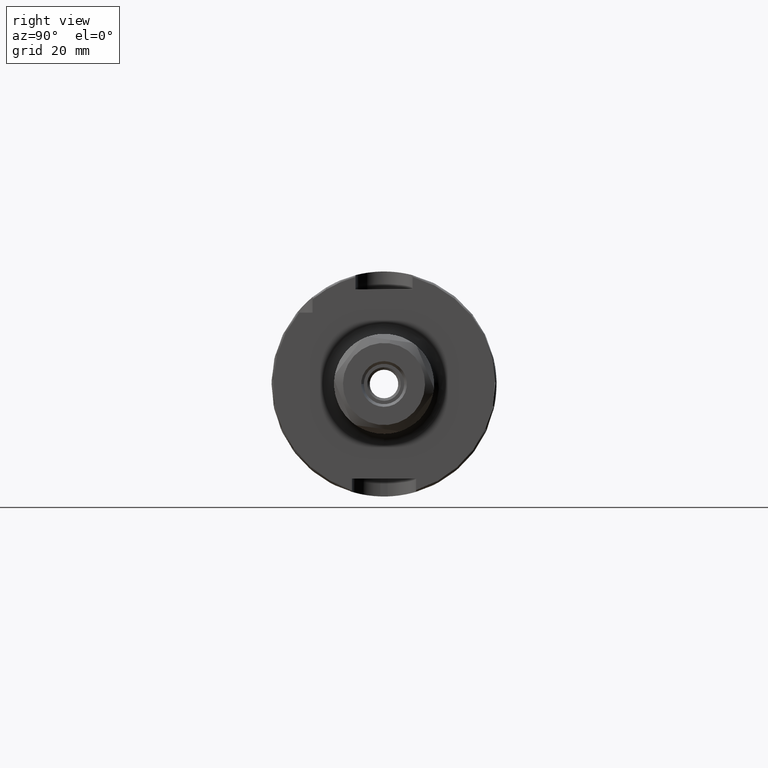
[diagram: clean part render]
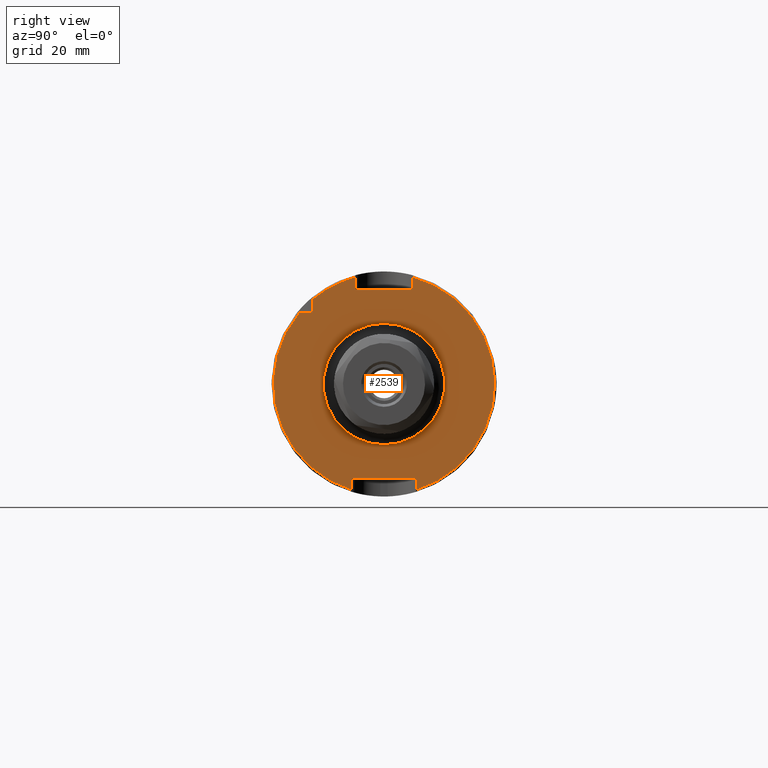
[diagram: same view with one face highlighted and labeled with its STEP entity id]
A machine part, right view. The second image highlights one B-rep face of the part: STEP entity #2539.
In plain terms, the highlighted planar face has unit normal (1, 0, 0).
Its self-contained STEP definition (entity closure, byte-faithful):
#154=FACE_BOUND('',#419,.T.);
#171=PLANE('',#2779);
#263=FACE_OUTER_BOUND('',#418,.T.);
#418=EDGE_LOOP('',(#1737,#1738,#1739,#1740,#1741,#1742,#1743,#1744,#1745,
#1746,#1747));
#419=EDGE_LOOP('',(#1748));
#581=LINE('',#3945,#727);
#582=LINE('',#3949,#728);
#583=LINE('',#3951,#729);
#584=LINE('',#3953,#730);
#585=LINE('',#3957,#731);
#586=LINE('',#3959,#732);
#587=LINE('',#3961,#733);
#588=LINE('',#3964,#734);
#727=VECTOR('',#3152,10.);
#728=VECTOR('',#3155,10.);
#729=VECTOR('',#3156,10.);
#730=VECTOR('',#3157,10.);
#731=VECTOR('',#3160,10.);
#732=VECTOR('',#3161,10.);
#733=VECTOR('',#3162,10.);
#734=VECTOR('',#3165,10.);
#887=CIRCLE('',#2778,17.);
#888=CIRCLE('',#2780,31.);
#889=CIRCLE('',#2781,31.);
#890=CIRCLE('',#2782,31.);
#1044=VERTEX_POINT('',#3939);
#1045=VERTEX_POINT('',#3943);
#1046=VERTEX_POINT('',#3944);
#1047=VERTEX_POINT('',#3946);
#1048=VERTEX_POINT('',#3948);
#1049=VERTEX_POINT('',#3950);
#1050=VERTEX_POINT('',#3952);
#1051=VERTEX_POINT('',#3954);
#1052=VERTEX_POINT('',#3956);
#1053=VERTEX_POINT('',#3958);
#1054=VERTEX_POINT('',#3960);
#1055=VERTEX_POINT('',#3962);
#1313=EDGE_CURVE('',#1044,#1044,#887,.T.);
#1314=EDGE_CURVE('',#1045,#1046,#581,.T.);
#1315=EDGE_CURVE('',#1046,#1047,#888,.T.);
#1316=EDGE_CURVE('',#1047,#1048,#582,.T.);
#1317=EDGE_CURVE('',#1048,#1049,#583,.T.);
#1318=EDGE_CURVE('',#1049,#1050,#584,.T.);
#1319=EDGE_CURVE('',#1050,#1051,#889,.T.);
#1320=EDGE_CURVE('',#1051,#1052,#585,.T.);
#1321=EDGE_CURVE('',#1052,#1053,#586,.T.);
#1322=EDGE_CURVE('',#1053,#1054,#587,.T.);
#1323=EDGE_CURVE('',#1054,#1055,#890,.T.);
#1324=EDGE_CURVE('',#1055,#1045,#588,.T.);
#1737=ORIENTED_EDGE('',*,*,#1314,.T.);
#1738=ORIENTED_EDGE('',*,*,#1315,.T.);
#1739=ORIENTED_EDGE('',*,*,#1316,.T.);
#1740=ORIENTED_EDGE('',*,*,#1317,.T.);
#1741=ORIENTED_EDGE('',*,*,#1318,.T.);
#1742=ORIENTED_EDGE('',*,*,#1319,.T.);
#1743=ORIENTED_EDGE('',*,*,#1320,.T.);
#1744=ORIENTED_EDGE('',*,*,#1321,.T.);
#1745=ORIENTED_EDGE('',*,*,#1322,.T.);
#1746=ORIENTED_EDGE('',*,*,#1323,.T.);
#1747=ORIENTED_EDGE('',*,*,#1324,.T.);
#1748=ORIENTED_EDGE('',*,*,#1313,.F.);
#2539=ADVANCED_FACE('',(#263,#154),#171,.T.);
#2778=AXIS2_PLACEMENT_3D('',#3941,#3148,#3149);
#2779=AXIS2_PLACEMENT_3D('',#3942,#3150,#3151);
#2780=AXIS2_PLACEMENT_3D('',#3947,#3153,#3154);
#2781=AXIS2_PLACEMENT_3D('',#3955,#3158,#3159);
#2782=AXIS2_PLACEMENT_3D('',#3963,#3163,#3164);
#3148=DIRECTION('center_axis',(1.,0.,0.));
#3149=DIRECTION('ref_axis',(0.,-1.,-1.22464679914735E-16));
#3150=DIRECTION('center_axis',(1.,0.,0.));
#3151=DIRECTION('ref_axis',(0.,0.,-1.));
#3152=DIRECTION('',(0.,-1.,0.));
#3153=DIRECTION('center_axis',(1.,0.,0.));
#3154=DIRECTION('ref_axis',(0.,0.,-1.));
#3155=DIRECTION('',(0.,0.,1.));
#3156=DIRECTION('',(0.,1.,0.));
#3157=DIRECTION('',(0.,0.,-1.));
#3158=DIRECTION('center_axis',(1.,0.,0.));
#3159=DIRECTION('ref_axis',(0.,0.,-1.));
#3160=DIRECTION('',(0.,0.,-1.));
#3161=DIRECTION('',(0.,-1.,0.));
#3162=DIRECTION('',(0.,0.,1.));
#3163=DIRECTION('center_axis',(1.,0.,0.));
#3164=DIRECTION('ref_axis',(0.,0.,-1.));
#3165=DIRECTION('',(0.,0.,-1.));
#3939=CARTESIAN_POINT('',(26.,-2.0818995585505E-15,-17.));
#3941=CARTESIAN_POINT('Origin',(26.,0.,0.));
#3942=CARTESIAN_POINT('Origin',(26.,0.,0.));
#3943=CARTESIAN_POINT('',(26.,-20.,20.));
#3944=CARTESIAN_POINT('',(26.,-23.685438564654,20.));
#3945=CARTESIAN_POINT('',(26.,-12.,20.));
#3946=CARTESIAN_POINT('',(26.,-9.,-29.6647939483827));
#3947=CARTESIAN_POINT('Origin',(26.,0.,0.));
#3948=CARTESIAN_POINT('',(26.,-9.,-26.5));
#3949=CARTESIAN_POINT('',(26.,-9.,-13.25));
#3950=CARTESIAN_POINT('',(26.,9.,-26.5));
#3951=CARTESIAN_POINT('',(26.,1.94289029309402E-15,-26.5));
#3952=CARTESIAN_POINT('',(26.,9.,-29.6647939483827));
#3953=CARTESIAN_POINT('',(26.,9.,-13.25));
#3954=CARTESIAN_POINT('',(26.,8.,29.9499582637439));
#3955=CARTESIAN_POINT('Origin',(26.,0.,0.));
#3956=CARTESIAN_POINT('',(26.,8.,26.5));
#3957=CARTESIAN_POINT('',(26.,8.,13.25));
#3958=CARTESIAN_POINT('',(26.,-8.,26.5));
#3959=CARTESIAN_POINT('',(26.,5.55111512312578E-16,26.5));
#3960=CARTESIAN_POINT('',(26.,-8.,29.9499582637439));
#3961=CARTESIAN_POINT('',(26.,-8.,13.25));
#3962=CARTESIAN_POINT('',(26.,-20.,23.685438564654));
#3963=CARTESIAN_POINT('Origin',(26.,0.,0.));
#3964=CARTESIAN_POINT('',(26.,-20.,10.));